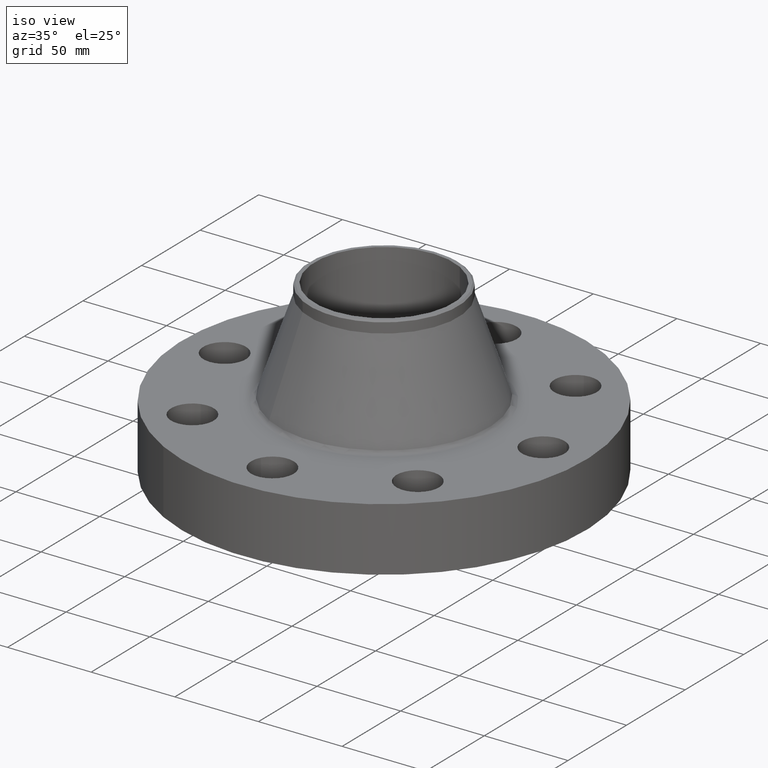
[diagram: clean part render]
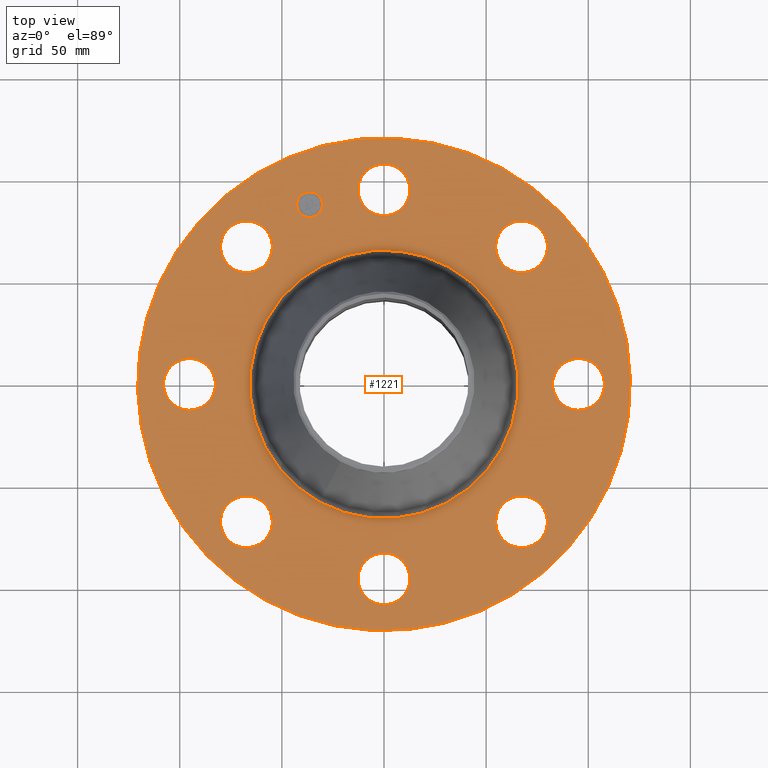
[diagram: tour spotlight — one face highlighted and labeled with its STEP entity id]
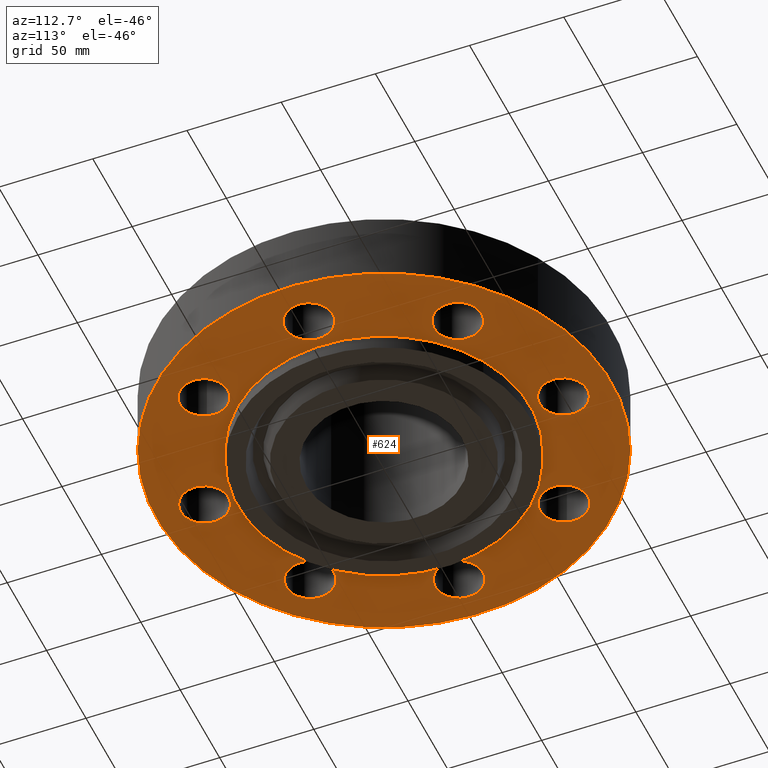
[diagram: tour spotlight — one face highlighted and labeled with its STEP entity id]
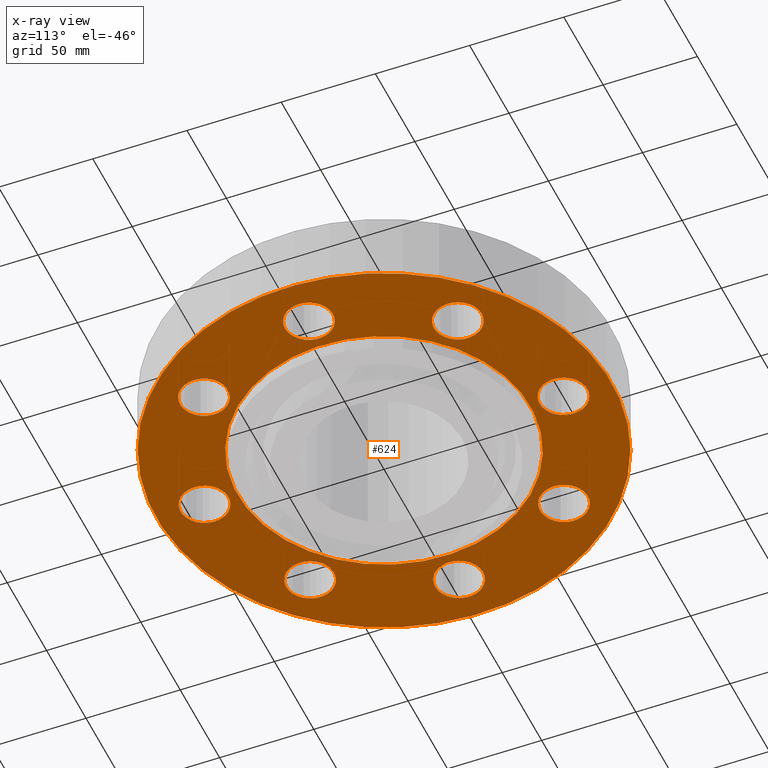
[diagram: x-ray of the same camera — body ghosted, this tour face saturated]
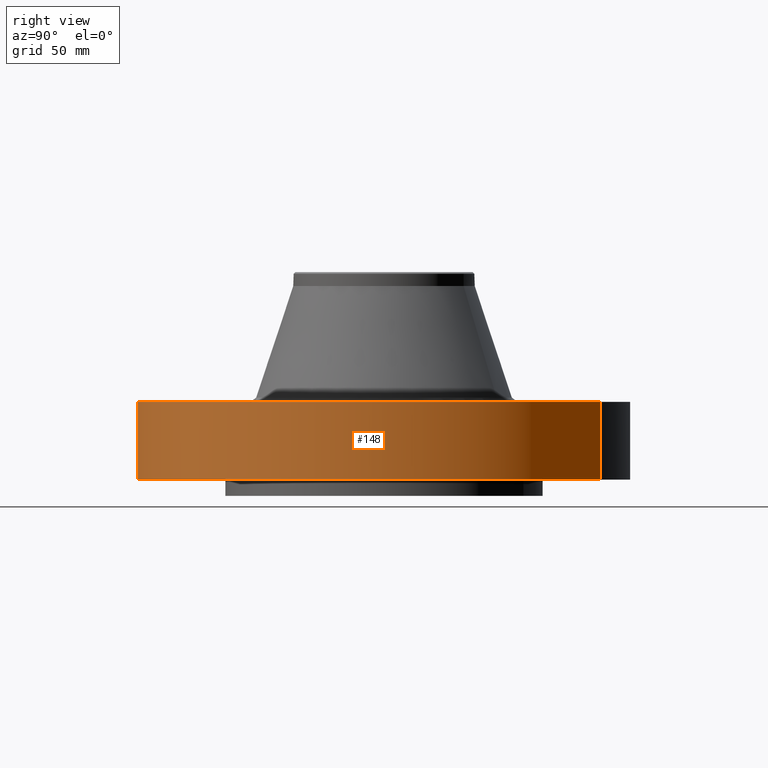
[diagram: tour spotlight — one face highlighted and labeled with its STEP entity id]
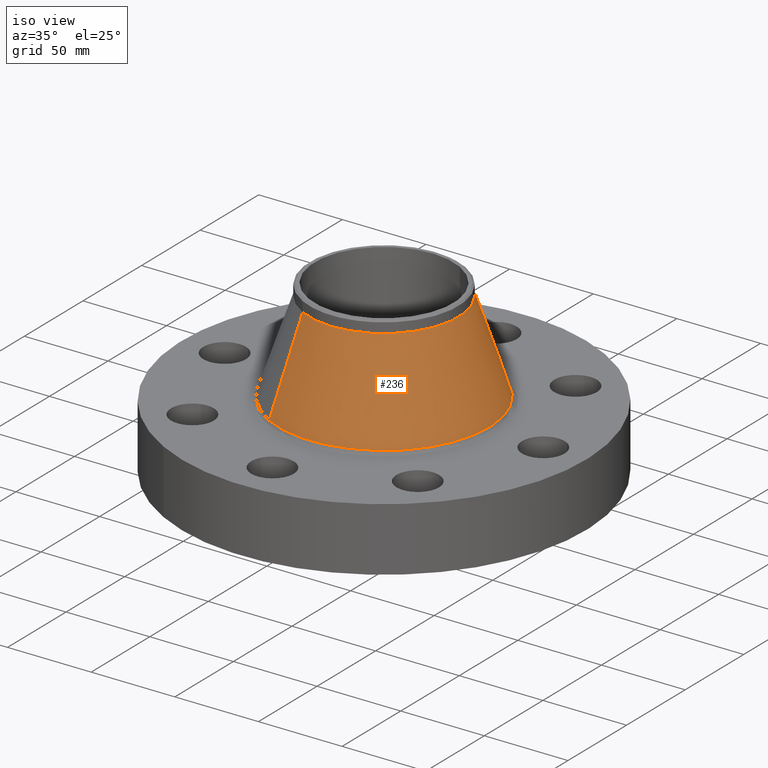
[diagram: tour spotlight — one face highlighted and labeled with its STEP entity id]
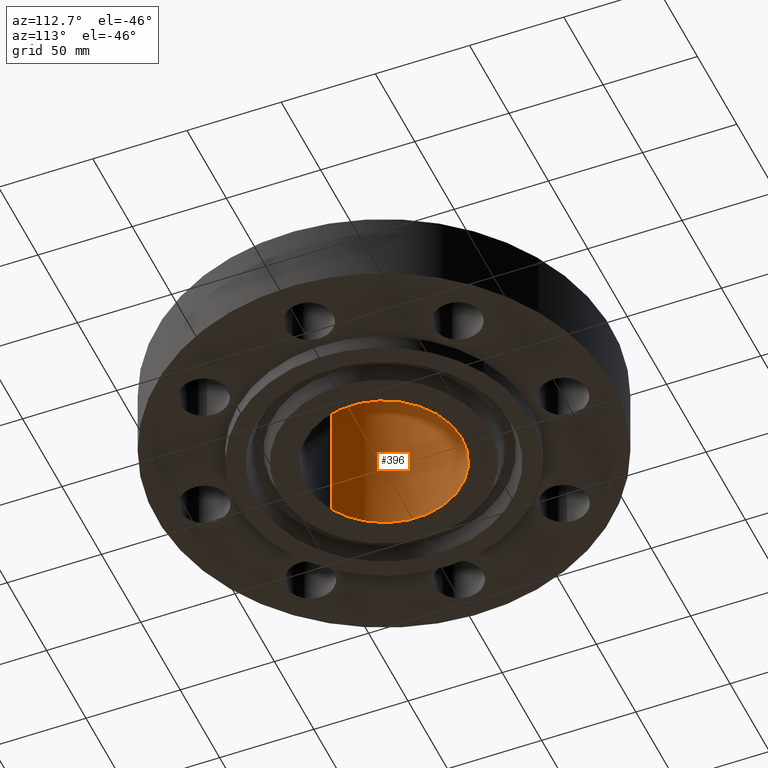
[diagram: tour spotlight — one face highlighted and labeled with its STEP entity id]
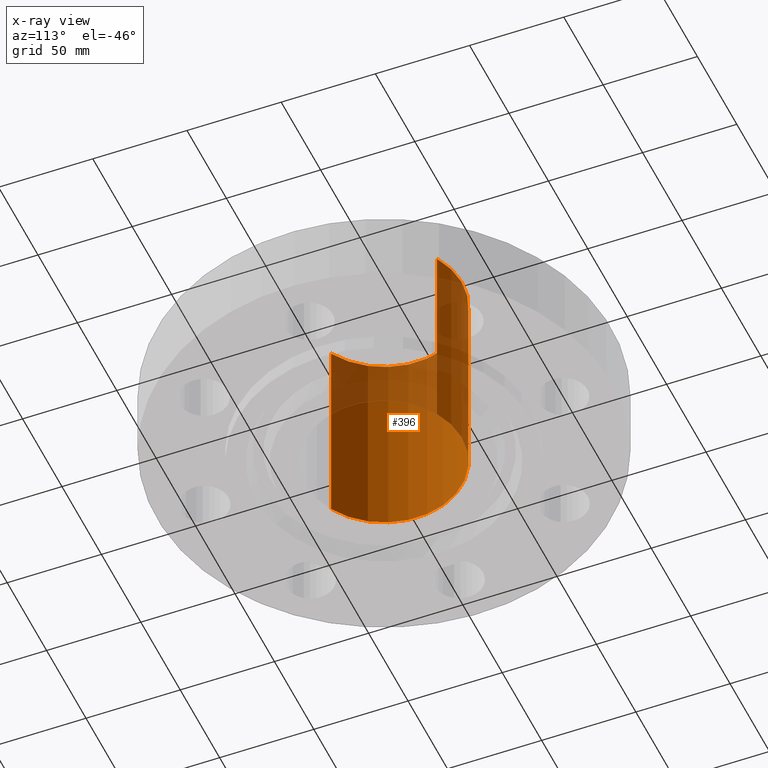
[diagram: x-ray of the same camera — body ghosted, this tour face saturated]
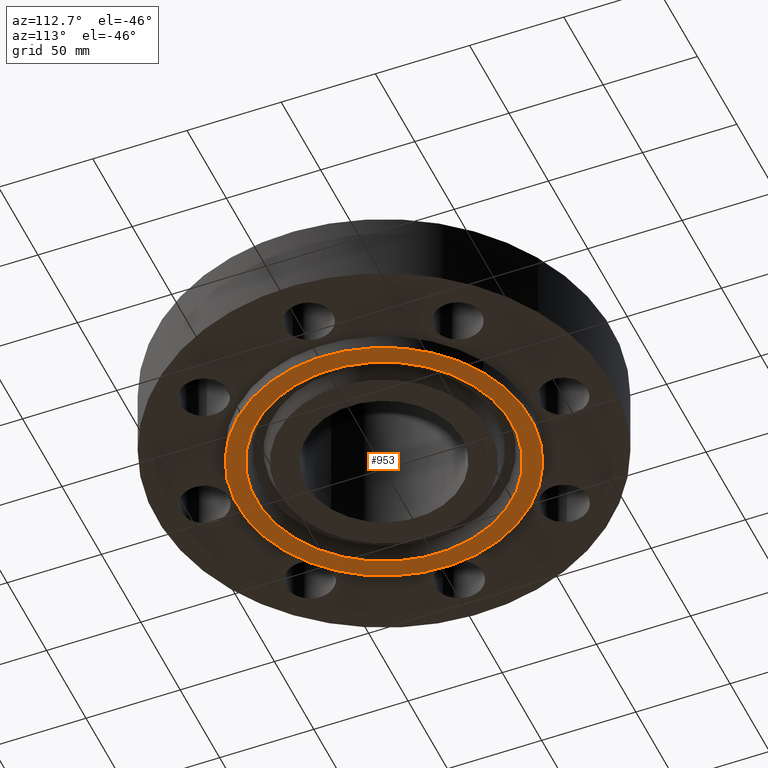
[diagram: tour spotlight — one face highlighted and labeled with its STEP entity id]
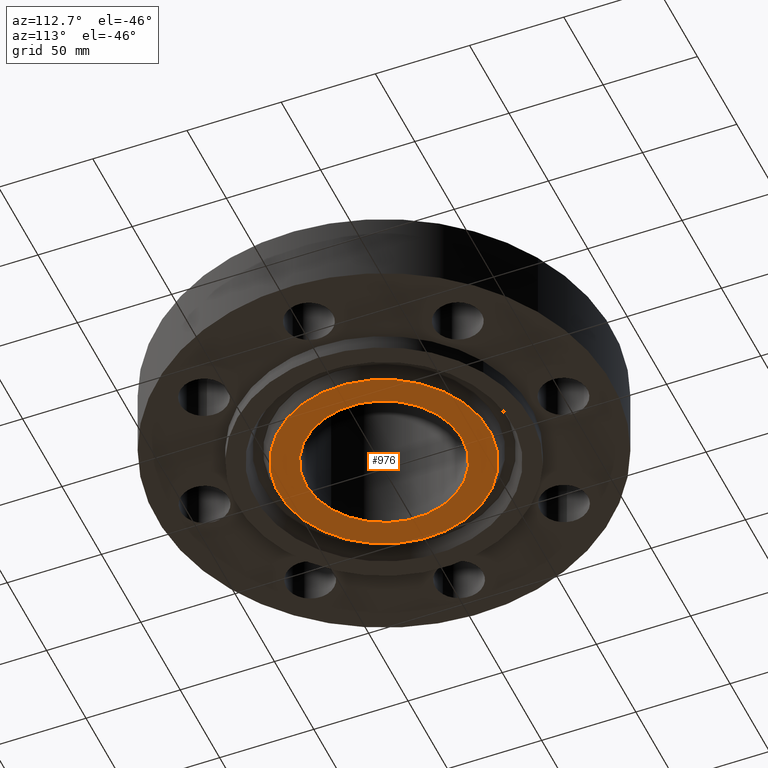
[diagram: tour spotlight — one face highlighted and labeled with its STEP entity id]
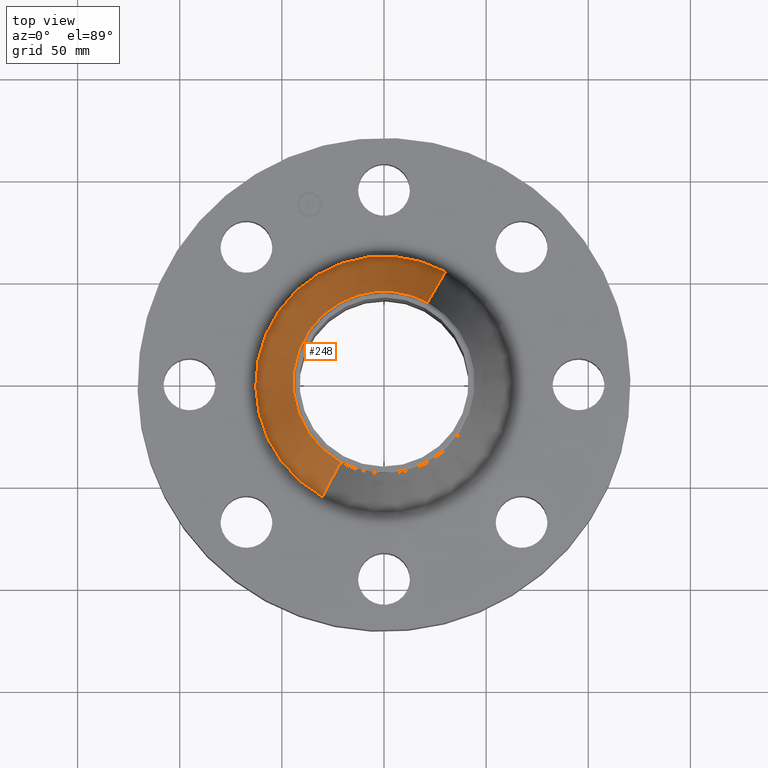
[diagram: tour spotlight — one face highlighted and labeled with its STEP entity id]
A machine part: a face-by-face anatomy tour. The part has 429 B-rep faces; the first image is the clean iso view, then the 8 largest visible faces are spotlighted one at a time (largest first), each with its STEP entity span.

Face 1 — top view, entity #1221. In plain terms, the highlighted planar face has unit normal (0, 0, -1).
Definition (entity closure, byte-faithful):
#65=AXIS2_PLACEMENT_3D('Circle Axis2P3D',#63,#64,$) ;
#82=AXIS2_PLACEMENT_3D('Circle Axis2P3D',#80,#81,$) ;
#115=AXIS2_PLACEMENT_3D('Circle Axis2P3D',#113,#114,$) ;
#139=AXIS2_PLACEMENT_3D('Circle Axis2P3D',#137,#138,$) ;
#156=AXIS2_PLACEMENT_3D('Circle Axis2P3D',#154,#155,$) ;
#191=AXIS2_PLACEMENT_3D('Circle Axis2P3D',#189,#190,$) ;
#646=AXIS2_PLACEMENT_3D('Circle Axis2P3D',#644,#645,$) ;
#658=AXIS2_PLACEMENT_3D('Circle Axis2P3D',#656,#657,$) ;
#689=AXIS2_PLACEMENT_3D('Circle Axis2P3D',#687,#688,$) ;
#701=AXIS2_PLACEMENT_3D('Circle Axis2P3D',#699,#700,$) ;
#732=AXIS2_PLACEMENT_3D('Circle Axis2P3D',#730,#731,$) ;
#744=AXIS2_PLACEMENT_3D('Circle Axis2P3D',#742,#743,$) ;
#775=AXIS2_PLACEMENT_3D('Circle Axis2P3D',#773,#774,$) ;
#787=AXIS2_PLACEMENT_3D('Circle Axis2P3D',#785,#786,$) ;
#818=AXIS2_PLACEMENT_3D('Circle Axis2P3D',#816,#817,$) ;
#830=AXIS2_PLACEMENT_3D('Circle Axis2P3D',#828,#829,$) ;
#861=AXIS2_PLACEMENT_3D('Circle Axis2P3D',#859,#860,$) ;
#873=AXIS2_PLACEMENT_3D('Circle Axis2P3D',#871,#872,$) ;
#904=AXIS2_PLACEMENT_3D('Circle Axis2P3D',#902,#903,$) ;
#916=AXIS2_PLACEMENT_3D('Circle Axis2P3D',#914,#915,$) ;
#1161=AXIS2_PLACEMENT_3D('Plane Axis2P3D',#1158,#1159,#1160) ;
#1205=AXIS2_PLACEMENT_3D('Circle Axis2P3D',#1203,#1204,$) ;
#1214=AXIS2_PLACEMENT_3D('Circle Axis2P3D',#1212,#1213,$) ;
#46=CARTESIAN_POINT('Vertex',(-0.438791280947,3.98971276932,1.50000000001)) ;
#60=CARTESIAN_POINT('Vertex',(0.438791280947,3.51028723071,1.50000000001)) ;
#63=CARTESIAN_POINT('Axis2P3D Location',(0.,3.75000000002,1.50000000001)) ;
#80=CARTESIAN_POINT('Axis2P3D Location',(0.,3.75000000002,1.50000000001)) ;
#110=CARTESIAN_POINT('Vertex',(-2.27727130838,-4.168517169,1.50000000001)) ;
#113=CARTESIAN_POINT('Axis2P3D Location',(0.,0.,1.50000000001)) ;
#117=CARTESIAN_POINT('Vertex',(2.27727130838,4.168517169,1.50000000001)) ;
#137=CARTESIAN_POINT('Axis2P3D Location',(0.,0.,1.50000000001)) ;
#154=CARTESIAN_POINT('Axis2P3D Location',(0.,0.,1.50000000001)) ;
#158=CARTESIAN_POINT('Vertex',(1.23992502813,2.26966753984,1.50000000001)) ;
#160=CARTESIAN_POINT('Vertex',(-1.23992502813,-2.26966753984,1.50000000001)) ;
#189=CARTESIAN_POINT('Axis2P3D Location',(0.,0.,1.50000000001)) ;
#634=CARTESIAN_POINT('Vertex',(-2.51088066389,-3.13142524445,1.50000000001)) ;
#641=CARTESIAN_POINT('Vertex',(-2.79242019503,-2.17187561447,1.50000000001)) ;
#644=CARTESIAN_POINT('Axis2P3D Location',(-2.65165042946,-2.65165042946,1.50000000001)) ;
#656=CARTESIAN_POINT('Axis2P3D Location',(-2.65165042946,-2.65165042946,1.50000000001)) ;
#677=CARTESIAN_POINT('Vertex',(3.98971276932,0.438791280947,1.50000000001)) ;
#684=CARTESIAN_POINT('Vertex',(3.51028723071,-0.438791280947,1.50000000001)) ;
#687=CARTESIAN_POINT('Axis2P3D Location',(3.75000000002,2.29621274841E-016,1.50000000001)) ;
#699=CARTESIAN_POINT('Axis2P3D Location',(3.75000000002,2.29621274841E-016,1.50000000001)) ;
#720=CARTESIAN_POINT('Vertex',(-3.98971276932,-0.438791280947,1.50000000001)) ;
#727=CARTESIAN_POINT('Vertex',(-3.51028723071,0.438791280947,1.50000000001)) ;
#730=CARTESIAN_POINT('Axis2P3D Location',(-3.75000000002,-6.88863824523E-016,1.50000000001)) ;
#742=CARTESIAN_POINT('Axis2P3D Location',(-3.75000000002,-6.88863824523E-016,1.50000000001)) ;
#763=CARTESIAN_POINT('Vertex',(3.13142524445,-2.51088066389,1.50000000001)) ;
#770=CARTESIAN_POINT('Vertex',(2.17187561447,-2.79242019503,1.50000000001)) ;
#773=CARTESIAN_POINT('Axis2P3D Location',(2.65165042946,-2.65165042946,1.50000000001)) ;
#785=CARTESIAN_POINT('Axis2P3D Location',(2.65165042946,-2.65165042946,1.50000000001)) ;
#806=CARTESIAN_POINT('Vertex',(-3.13142524445,2.51088066389,1.50000000001)) ;
#813=CARTESIAN_POINT('Vertex',(-2.17187561447,2.79242019503,1.50000000001)) ;
#816=CARTESIAN_POINT('Axis2P3D Location',(-2.65165042946,2.65165042946,1.50000000001)) ;
#828=CARTESIAN_POINT('Axis2P3D Location',(-2.65165042946,2.65165042946,1.50000000001)) ;
#849=CARTESIAN_POINT('Vertex',(0.438791280947,-3.98971276932,1.50000000001)) ;
#856=CARTESIAN_POINT('Vertex',(-0.438791280947,-3.51028723071,1.50000000001)) ;
#859=CARTESIAN_POINT('Axis2P3D Location',(4.59242549682E-016,-3.75000000002,1.50000000001)) ;
#871=CARTESIAN_POINT('Axis2P3D Location',(4.59242549682E-016,-3.75000000002,1.50000000001)) ;
#892=CARTESIAN_POINT('Vertex',(2.51088066389,3.13142524445,1.50000000001)) ;
#899=CARTESIAN_POINT('Vertex',(2.79242019503,2.17187561447,1.50000000001)) ;
#902=CARTESIAN_POINT('Axis2P3D Location',(2.65165042946,2.65165042946,1.50000000001)) ;
#914=CARTESIAN_POINT('Axis2P3D Location',(2.65165042946,2.65165042946,1.50000000001)) ;
#1158=CARTESIAN_POINT('Axis2P3D Location',(0.,4.75000000002,1.50000000001)) ;
#1203=CARTESIAN_POINT('Axis2P3D Location',(-1.43506287137,3.46454824693,1.50000000001)) ;
#1207=CARTESIAN_POINT('Vertex',(-1.66372305567,3.36983409742,1.50000000001)) ;
#1209=CARTESIAN_POINT('Vertex',(-1.20640268708,3.55926239644,1.50000000001)) ;
#1212=CARTESIAN_POINT('Axis2P3D Location',(-1.43506287137,3.46454824693,1.50000000001)) ;
#64=DIRECTION('Axis2P3D Direction',(0.,-0.,-0.0393700787402)) ;
#81=DIRECTION('Axis2P3D Direction',(0.,-0.,-0.0393700787402)) ;
#114=DIRECTION('Axis2P3D Direction',(0.,0.,-0.0393700787402)) ;
#138=DIRECTION('Axis2P3D Direction',(0.,0.,-0.0393700787402)) ;
#155=DIRECTION('Axis2P3D Direction',(0.,0.,-0.0393700787402)) ;
#190=DIRECTION('Axis2P3D Direction',(0.,0.,-0.0393700787402)) ;
#645=DIRECTION('Axis2P3D Direction',(0.,0.,-0.0393700787402)) ;
#657=DIRECTION('Axis2P3D Direction',(0.,0.,-0.0393700787402)) ;
#688=DIRECTION('Axis2P3D Direction',(0.,-0.,-0.0393700787402)) ;
#700=DIRECTION('Axis2P3D Direction',(0.,-0.,-0.0393700787402)) ;
#731=DIRECTION('Axis2P3D Direction',(0.,0.,-0.0393700787402)) ;
#743=DIRECTION('Axis2P3D Direction',(0.,0.,-0.0393700787402)) ;
#774=DIRECTION('Axis2P3D Direction',(-0.,0.,-0.0393700787402)) ;
#786=DIRECTION('Axis2P3D Direction',(-0.,0.,-0.0393700787402)) ;
#817=DIRECTION('Axis2P3D Direction',(0.,0.,-0.0393700787402)) ;
#829=DIRECTION('Axis2P3D Direction',(0.,0.,-0.0393700787402)) ;
#860=DIRECTION('Axis2P3D Direction',(-0.,0.,-0.0393700787402)) ;
#872=DIRECTION('Axis2P3D Direction',(-0.,0.,-0.0393700787402)) ;
#903=DIRECTION('Axis2P3D Direction',(0.,-0.,-0.0393700787402)) ;
#915=DIRECTION('Axis2P3D Direction',(0.,-0.,-0.0393700787402)) ;
#1159=DIRECTION('Axis2P3D Direction',(0.,0.,-0.0393700787402)) ;
#1160=DIRECTION('Axis2P3D XDirection',(0.0393700787402,0.,0.)) ;
#1204=DIRECTION('Axis2P3D Direction',(0.,0.,-0.0393700787402)) ;
#1213=DIRECTION('Axis2P3D Direction',(0.,0.,-0.0393700787402)) ;
#1164=ORIENTED_EDGE('',*,*,#141,.F.) ;
#1165=ORIENTED_EDGE('',*,*,#119,.F.) ;
#1168=ORIENTED_EDGE('',*,*,#67,.T.) ;
#1169=ORIENTED_EDGE('',*,*,#84,.T.) ;
#1172=ORIENTED_EDGE('',*,*,#193,.T.) ;
#1173=ORIENTED_EDGE('',*,*,#162,.T.) ;
#1176=ORIENTED_EDGE('',*,*,#918,.T.) ;
#1177=ORIENTED_EDGE('',*,*,#906,.T.) ;
#1180=ORIENTED_EDGE('',*,*,#703,.T.) ;
#1181=ORIENTED_EDGE('',*,*,#691,.T.) ;
#1184=ORIENTED_EDGE('',*,*,#789,.T.) ;
#1185=ORIENTED_EDGE('',*,*,#777,.T.) ;
#1188=ORIENTED_EDGE('',*,*,#875,.T.) ;
#1189=ORIENTED_EDGE('',*,*,#863,.T.) ;
#1192=ORIENTED_EDGE('',*,*,#660,.T.) ;
#1193=ORIENTED_EDGE('',*,*,#648,.T.) ;
#1196=ORIENTED_EDGE('',*,*,#746,.T.) ;
#1197=ORIENTED_EDGE('',*,*,#734,.T.) ;
#1200=ORIENTED_EDGE('',*,*,#832,.T.) ;
#1201=ORIENTED_EDGE('',*,*,#820,.T.) ;
#1218=ORIENTED_EDGE('',*,*,#1211,.T.) ;
#1219=ORIENTED_EDGE('',*,*,#1216,.T.) ;
#1170=FACE_BOUND('',#1167,.T.) ;
#1174=FACE_BOUND('',#1171,.T.) ;
#1178=FACE_BOUND('',#1175,.T.) ;
#1182=FACE_BOUND('',#1179,.T.) ;
#1186=FACE_BOUND('',#1183,.T.) ;
#1190=FACE_BOUND('',#1187,.T.) ;
#1194=FACE_BOUND('',#1191,.T.) ;
#1198=FACE_BOUND('',#1195,.T.) ;
#1202=FACE_BOUND('',#1199,.T.) ;
#1220=FACE_BOUND('',#1217,.T.) ;
#1221=ADVANCED_FACE('PartBody',(#1166,#1170,#1174,#1178,#1182,#1186,#1190,#1194,#1198,#1202,#1220),#1162,.F.) ;
#66=CIRCLE('generated circle',#65,0.500000000002) ;
#83=CIRCLE('generated circle',#82,0.500000000002) ;
#116=CIRCLE('generated circle',#115,4.75000000002) ;
#140=CIRCLE('generated circle',#139,4.75000000002) ;
#157=CIRCLE('generated circle',#156,2.58627237869) ;
#192=CIRCLE('generated circle',#191,2.58627237869) ;
#647=CIRCLE('generated circle',#646,0.500000000002) ;
#659=CIRCLE('generated circle',#658,0.500000000002) ;
#690=CIRCLE('generated circle',#689,0.500000000002) ;
#702=CIRCLE('generated circle',#701,0.500000000002) ;
#733=CIRCLE('generated circle',#732,0.500000000002) ;
#745=CIRCLE('generated circle',#744,0.500000000002) ;
#776=CIRCLE('generated circle',#775,0.500000000002) ;
#788=CIRCLE('generated circle',#787,0.500000000002) ;
#819=CIRCLE('generated circle',#818,0.500000000002) ;
#831=CIRCLE('generated circle',#830,0.500000000002) ;
#862=CIRCLE('generated circle',#861,0.500000000002) ;
#874=CIRCLE('generated circle',#873,0.500000000002) ;
#905=CIRCLE('generated circle',#904,0.500000000002) ;
#917=CIRCLE('generated circle',#916,0.500000000002) ;
#1206=CIRCLE('generated circle',#1205,0.247500000001) ;
#1215=CIRCLE('generated circle',#1214,0.247500000001) ;
#67=EDGE_CURVE('',#47,#61,#66,.T.) ;
#84=EDGE_CURVE('',#61,#47,#83,.T.) ;
#119=EDGE_CURVE('',#111,#118,#116,.T.) ;
#141=EDGE_CURVE('',#118,#111,#140,.T.) ;
#162=EDGE_CURVE('',#159,#161,#157,.T.) ;
#193=EDGE_CURVE('',#161,#159,#192,.T.) ;
#648=EDGE_CURVE('',#635,#642,#647,.T.) ;
#660=EDGE_CURVE('',#642,#635,#659,.T.) ;
#691=EDGE_CURVE('',#678,#685,#690,.T.) ;
#703=EDGE_CURVE('',#685,#678,#702,.T.) ;
#734=EDGE_CURVE('',#721,#728,#733,.T.) ;
#746=EDGE_CURVE('',#728,#721,#745,.T.) ;
#777=EDGE_CURVE('',#764,#771,#776,.T.) ;
#789=EDGE_CURVE('',#771,#764,#788,.T.) ;
#820=EDGE_CURVE('',#807,#814,#819,.T.) ;
#832=EDGE_CURVE('',#814,#807,#831,.T.) ;
#863=EDGE_CURVE('',#850,#857,#862,.T.) ;
#875=EDGE_CURVE('',#857,#850,#874,.T.) ;
#906=EDGE_CURVE('',#893,#900,#905,.T.) ;
#918=EDGE_CURVE('',#900,#893,#917,.T.) ;
#1211=EDGE_CURVE('',#1208,#1210,#1206,.T.) ;
#1216=EDGE_CURVE('',#1210,#1208,#1215,.T.) ;
#1163=EDGE_LOOP('',(#1164,#1165)) ;
#1167=EDGE_LOOP('',(#1168,#1169)) ;
#1171=EDGE_LOOP('',(#1172,#1173)) ;
#1175=EDGE_LOOP('',(#1176,#1177)) ;
#1179=EDGE_LOOP('',(#1180,#1181)) ;
#1183=EDGE_LOOP('',(#1184,#1185)) ;
#1187=EDGE_LOOP('',(#1188,#1189)) ;
#1191=EDGE_LOOP('',(#1192,#1193)) ;
#1195=EDGE_LOOP('',(#1196,#1197)) ;
#1199=EDGE_LOOP('',(#1200,#1201)) ;
#1217=EDGE_LOOP('',(#1218,#1219)) ;
#1166=FACE_OUTER_BOUND('',#1163,.T.) ;
#1162=PLANE('',#1161) ;
#47=VERTEX_POINT('',#46) ;
#61=VERTEX_POINT('',#60) ;
#111=VERTEX_POINT('',#110) ;
#118=VERTEX_POINT('',#117) ;
#159=VERTEX_POINT('',#158) ;
#161=VERTEX_POINT('',#160) ;
#635=VERTEX_POINT('',#634) ;
#642=VERTEX_POINT('',#641) ;
#678=VERTEX_POINT('',#677) ;
#685=VERTEX_POINT('',#684) ;
#721=VERTEX_POINT('',#720) ;
#728=VERTEX_POINT('',#727) ;
#764=VERTEX_POINT('',#763) ;
#771=VERTEX_POINT('',#770) ;
#807=VERTEX_POINT('',#806) ;
#814=VERTEX_POINT('',#813) ;
#850=VERTEX_POINT('',#849) ;
#857=VERTEX_POINT('',#856) ;
#893=VERTEX_POINT('',#892) ;
#900=VERTEX_POINT('',#899) ;
#1208=VERTEX_POINT('',#1207) ;
#1210=VERTEX_POINT('',#1209) ;

Face 2 — auxiliary view, entity #624. An x-ray twin of the same camera follows (body ghosted, this face saturated) — the face is partly hidden behind the body. In plain terms, the highlighted planar face has unit normal (0, 0, -1).
Definition (entity closure, byte-faithful):
#51=AXIS2_PLACEMENT_3D('Circle Axis2P3D',#49,#50,$) ;
#77=AXIS2_PLACEMENT_3D('Circle Axis2P3D',#75,#76,$) ;
#99=AXIS2_PLACEMENT_3D('Circle Axis2P3D',#97,#98,$) ;
#134=AXIS2_PLACEMENT_3D('Circle Axis2P3D',#132,#133,$) ;
#447=AXIS2_PLACEMENT_3D('Circle Axis2P3D',#445,#446,$) ;
#471=AXIS2_PLACEMENT_3D('Circle Axis2P3D',#469,#470,$) ;
#484=AXIS2_PLACEMENT_3D('Plane Axis2P3D',#481,#482,#483) ;
#500=AXIS2_PLACEMENT_3D('Circle Axis2P3D',#498,#499,$) ;
#509=AXIS2_PLACEMENT_3D('Circle Axis2P3D',#507,#508,$) ;
#518=AXIS2_PLACEMENT_3D('Circle Axis2P3D',#516,#517,$) ;
#527=AXIS2_PLACEMENT_3D('Circle Axis2P3D',#525,#526,$) ;
#536=AXIS2_PLACEMENT_3D('Circle Axis2P3D',#534,#535,$) ;
#545=AXIS2_PLACEMENT_3D('Circle Axis2P3D',#543,#544,$) ;
#554=AXIS2_PLACEMENT_3D('Circle Axis2P3D',#552,#553,$) ;
#563=AXIS2_PLACEMENT_3D('Circle Axis2P3D',#561,#562,$) ;
#572=AXIS2_PLACEMENT_3D('Circle Axis2P3D',#570,#571,$) ;
#581=AXIS2_PLACEMENT_3D('Circle Axis2P3D',#579,#580,$) ;
#590=AXIS2_PLACEMENT_3D('Circle Axis2P3D',#588,#589,$) ;
#599=AXIS2_PLACEMENT_3D('Circle Axis2P3D',#597,#598,$) ;
#608=AXIS2_PLACEMENT_3D('Circle Axis2P3D',#606,#607,$) ;
#617=AXIS2_PLACEMENT_3D('Circle Axis2P3D',#615,#616,$) ;
#44=CARTESIAN_POINT('Vertex',(-0.438791280947,3.98971276932,0.)) ;
#49=CARTESIAN_POINT('Axis2P3D Location',(0.,3.75000000002,0.)) ;
#53=CARTESIAN_POINT('Vertex',(0.438791280947,3.51028723071,0.)) ;
#75=CARTESIAN_POINT('Axis2P3D Location',(0.,3.75000000002,0.)) ;
#97=CARTESIAN_POINT('Axis2P3D Location',(0.,0.,5.59482469102E-016)) ;
#101=CARTESIAN_POINT('Vertex',(-2.27727130838,-4.168517169,5.59482469102E-016)) ;
#103=CARTESIAN_POINT('Vertex',(2.27727130838,4.168517169,5.59482469102E-016)) ;
#132=CARTESIAN_POINT('Axis2P3D Location',(0.,0.,5.59482469102E-016)) ;
#442=CARTESIAN_POINT('Vertex',(-1.46824071198,-2.6875965958,2.79741234551E-016)) ;
#445=CARTESIAN_POINT('Axis2P3D Location',(0.,0.,2.79741234551E-016)) ;
#449=CARTESIAN_POINT('Vertex',(1.46824071198,2.6875965958,2.79741234551E-016)) ;
#469=CARTESIAN_POINT('Axis2P3D Location',(0.,0.,2.79741234551E-016)) ;
#481=CARTESIAN_POINT('Axis2P3D Location',(0.,3.06250000001,0.)) ;
#498=CARTESIAN_POINT('Axis2P3D Location',(2.65165042946,2.65165042946,0.)) ;
#502=CARTESIAN_POINT('Vertex',(2.51088066389,3.13142524445,0.)) ;
#504=CARTESIAN_POINT('Vertex',(2.79242019503,2.17187561447,0.)) ;
#507=CARTESIAN_POINT('Axis2P3D Location',(2.65165042946,2.65165042946,0.)) ;
#516=CARTESIAN_POINT('Axis2P3D Location',(3.75000000002,5.59482469102E-016,0.)) ;
#520=CARTESIAN_POINT('Vertex',(3.98971276932,0.438791280947,0.)) ;
#522=CARTESIAN_POINT('Vertex',(3.51028723071,-0.438791280947,0.)) ;
#525=CARTESIAN_POINT('Axis2P3D Location',(3.75000000002,0.,0.)) ;
#534=CARTESIAN_POINT('Axis2P3D Location',(2.65165042946,-2.65165042946,0.)) ;
#538=CARTESIAN_POINT('Vertex',(3.13142524445,-2.51088066389,0.)) ;
#540=CARTESIAN_POINT('Vertex',(2.17187561447,-2.79242019503,0.)) ;
#543=CARTESIAN_POINT('Axis2P3D Location',(2.65165042946,-2.65165042946,0.)) ;
#552=CARTESIAN_POINT('Axis2P3D Location',(4.89547160465E-016,-3.75000000002,0.)) ;
#556=CARTESIAN_POINT('Vertex',(0.438791280947,-3.98971276932,0.)) ;
#558=CARTESIAN_POINT('Vertex',(-0.438791280947,-3.51028723071,0.)) ;
#561=CARTESIAN_POINT('Axis2P3D Location',(6.469016049E-016,-3.75000000002,0.)) ;
#570=CARTESIAN_POINT('Axis2P3D Location',(-2.65165042946,-2.65165042946,0.)) ;
#574=CARTESIAN_POINT('Vertex',(-2.51088066389,-3.13142524445,0.)) ;
#576=CARTESIAN_POINT('Vertex',(-2.79242019503,-2.17187561447,0.)) ;
#579=CARTESIAN_POINT('Axis2P3D Location',(-2.65165042946,-2.65165042946,0.)) ;
#588=CARTESIAN_POINT('Axis2P3D Location',(-3.75000000002,-5.59482469102E-016,0.)) ;
#592=CARTESIAN_POINT('Vertex',(-3.98971276932,-0.438791280947,0.)) ;
#594=CARTESIAN_POINT('Vertex',(-3.51028723071,0.438791280947,0.)) ;
#597=CARTESIAN_POINT('Axis2P3D Location',(-3.75000000002,-5.59482469102E-016,0.)) ;
#606=CARTESIAN_POINT('Axis2P3D Location',(-2.65165042946,2.65165042946,0.)) ;
#610=CARTESIAN_POINT('Vertex',(-3.13142524445,2.51088066389,0.)) ;
#612=CARTESIAN_POINT('Vertex',(-2.17187561447,2.79242019503,0.)) ;
#615=CARTESIAN_POINT('Axis2P3D Location',(-2.65165042946,2.65165042946,0.)) ;
#50=DIRECTION('Axis2P3D Direction',(0.,-0.,-0.0393700787402)) ;
#76=DIRECTION('Axis2P3D Direction',(0.,-0.,-0.0393700787402)) ;
#98=DIRECTION('Axis2P3D Direction',(0.,0.,-0.0393700787402)) ;
#133=DIRECTION('Axis2P3D Direction',(0.,0.,-0.0393700787402)) ;
#446=DIRECTION('Axis2P3D Direction',(0.,0.,-0.0393700787402)) ;
#470=DIRECTION('Axis2P3D Direction',(0.,0.,-0.0393700787402)) ;
#482=DIRECTION('Axis2P3D Direction',(0.,0.,-0.0393700787402)) ;
#483=DIRECTION('Axis2P3D XDirection',(0.0393700787402,0.,0.)) ;
#499=DIRECTION('Axis2P3D Direction',(0.,0.,-0.0393700787402)) ;
#508=DIRECTION('Axis2P3D Direction',(0.,0.,-0.0393700787402)) ;
#517=DIRECTION('Axis2P3D Direction',(0.,0.,-0.0393700787402)) ;
#526=DIRECTION('Axis2P3D Direction',(0.,0.,-0.0393700787402)) ;
#535=DIRECTION('Axis2P3D Direction',(0.,0.,-0.0393700787402)) ;
#544=DIRECTION('Axis2P3D Direction',(0.,0.,-0.0393700787402)) ;
#553=DIRECTION('Axis2P3D Direction',(0.,0.,-0.0393700787402)) ;
#562=DIRECTION('Axis2P3D Direction',(0.,0.,-0.0393700787402)) ;
#571=DIRECTION('Axis2P3D Direction',(0.,0.,-0.0393700787402)) ;
#580=DIRECTION('Axis2P3D Direction',(0.,0.,-0.0393700787402)) ;
#589=DIRECTION('Axis2P3D Direction',(0.,0.,-0.0393700787402)) ;
#598=DIRECTION('Axis2P3D Direction',(0.,0.,-0.0393700787402)) ;
#607=DIRECTION('Axis2P3D Direction',(0.,0.,-0.0393700787402)) ;
#616=DIRECTION('Axis2P3D Direction',(0.,0.,-0.0393700787402)) ;
#487=ORIENTED_EDGE('',*,*,#105,.T.) ;
#488=ORIENTED_EDGE('',*,*,#136,.T.) ;
#491=ORIENTED_EDGE('',*,*,#79,.F.) ;
#492=ORIENTED_EDGE('',*,*,#55,.F.) ;
#495=ORIENTED_EDGE('',*,*,#473,.F.) ;
#496=ORIENTED_EDGE('',*,*,#451,.F.) ;
#513=ORIENTED_EDGE('',*,*,#506,.F.) ;
#514=ORIENTED_EDGE('',*,*,#511,.F.) ;
#531=ORIENTED_EDGE('',*,*,#524,.F.) ;
#532=ORIENTED_EDGE('',*,*,#529,.F.) ;
#549=ORIENTED_EDGE('',*,*,#542,.F.) ;
#550=ORIENTED_EDGE('',*,*,#547,.F.) ;
#567=ORIENTED_EDGE('',*,*,#560,.F.) ;
#568=ORIENTED_EDGE('',*,*,#565,.F.) ;
#585=ORIENTED_EDGE('',*,*,#578,.F.) ;
#586=ORIENTED_EDGE('',*,*,#583,.F.) ;
#603=ORIENTED_EDGE('',*,*,#596,.F.) ;
#604=ORIENTED_EDGE('',*,*,#601,.F.) ;
#621=ORIENTED_EDGE('',*,*,#614,.F.) ;
#622=ORIENTED_EDGE('',*,*,#619,.F.) ;
#493=FACE_BOUND('',#490,.T.) ;
#497=FACE_BOUND('',#494,.T.) ;
#515=FACE_BOUND('',#512,.T.) ;
#533=FACE_BOUND('',#530,.T.) ;
#551=FACE_BOUND('',#548,.T.) ;
#569=FACE_BOUND('',#566,.T.) ;
#587=FACE_BOUND('',#584,.T.) ;
#605=FACE_BOUND('',#602,.T.) ;
#623=FACE_BOUND('',#620,.T.) ;
#624=ADVANCED_FACE('PartBody',(#489,#493,#497,#515,#533,#551,#569,#587,#605,#623),#485,.T.) ;
#52=CIRCLE('generated circle',#51,0.500000000002) ;
#78=CIRCLE('generated circle',#77,0.500000000002) ;
#100=CIRCLE('generated circle',#99,4.75000000002) ;
#135=CIRCLE('generated circle',#134,4.75000000002) ;
#448=CIRCLE('generated circle',#447,3.06250000001) ;
#472=CIRCLE('generated circle',#471,3.06250000001) ;
#501=CIRCLE('generated circle',#500,0.500000000002) ;
#510=CIRCLE('generated circle',#509,0.500000000002) ;
#519=CIRCLE('generated circle',#518,0.500000000002) ;
#528=CIRCLE('generated circle',#527,0.500000000002) ;
#537=CIRCLE('generated circle',#536,0.500000000002) ;
#546=CIRCLE('generated circle',#545,0.500000000002) ;
#555=CIRCLE('generated circle',#554,0.500000000002) ;
#564=CIRCLE('generated circle',#563,0.500000000002) ;
#573=CIRCLE('generated circle',#572,0.500000000002) ;
#582=CIRCLE('generated circle',#581,0.500000000002) ;
#591=CIRCLE('generated circle',#590,0.500000000002) ;
#600=CIRCLE('generated circle',#599,0.500000000002) ;
#609=CIRCLE('generated circle',#608,0.500000000002) ;
#618=CIRCLE('generated circle',#617,0.500000000002) ;
#55=EDGE_CURVE('',#45,#54,#52,.T.) ;
#79=EDGE_CURVE('',#54,#45,#78,.T.) ;
#105=EDGE_CURVE('',#102,#104,#100,.T.) ;
#136=EDGE_CURVE('',#104,#102,#135,.T.) ;
#451=EDGE_CURVE('',#443,#450,#448,.T.) ;
#473=EDGE_CURVE('',#450,#443,#472,.T.) ;
#506=EDGE_CURVE('',#503,#505,#501,.T.) ;
#511=EDGE_CURVE('',#505,#503,#510,.T.) ;
#524=EDGE_CURVE('',#521,#523,#519,.T.) ;
#529=EDGE_CURVE('',#523,#521,#528,.T.) ;
#542=EDGE_CURVE('',#539,#541,#537,.T.) ;
#547=EDGE_CURVE('',#541,#539,#546,.T.) ;
#560=EDGE_CURVE('',#557,#559,#555,.T.) ;
#565=EDGE_CURVE('',#559,#557,#564,.T.) ;
#578=EDGE_CURVE('',#575,#577,#573,.T.) ;
#583=EDGE_CURVE('',#577,#575,#582,.T.) ;
#596=EDGE_CURVE('',#593,#595,#591,.T.) ;
#601=EDGE_CURVE('',#595,#593,#600,.T.) ;
#614=EDGE_CURVE('',#611,#613,#609,.T.) ;
#619=EDGE_CURVE('',#613,#611,#618,.T.) ;
#486=EDGE_LOOP('',(#487,#488)) ;
#490=EDGE_LOOP('',(#491,#492)) ;
#494=EDGE_LOOP('',(#495,#496)) ;
#512=EDGE_LOOP('',(#513,#514)) ;
#530=EDGE_LOOP('',(#531,#532)) ;
#548=EDGE_LOOP('',(#549,#550)) ;
#566=EDGE_LOOP('',(#567,#568)) ;
#584=EDGE_LOOP('',(#585,#586)) ;
#602=EDGE_LOOP('',(#603,#604)) ;
#620=EDGE_LOOP('',(#621,#622)) ;
#489=FACE_OUTER_BOUND('',#486,.T.) ;
#485=PLANE('',#484) ;
#45=VERTEX_POINT('',#44) ;
#54=VERTEX_POINT('',#53) ;
#102=VERTEX_POINT('',#101) ;
#104=VERTEX_POINT('',#103) ;
#443=VERTEX_POINT('',#442) ;
#450=VERTEX_POINT('',#449) ;
#503=VERTEX_POINT('',#502) ;
#505=VERTEX_POINT('',#504) ;
#521=VERTEX_POINT('',#520) ;
#523=VERTEX_POINT('',#522) ;
#539=VERTEX_POINT('',#538) ;
#541=VERTEX_POINT('',#540) ;
#557=VERTEX_POINT('',#556) ;
#559=VERTEX_POINT('',#558) ;
#575=VERTEX_POINT('',#574) ;
#577=VERTEX_POINT('',#576) ;
#593=VERTEX_POINT('',#592) ;
#595=VERTEX_POINT('',#594) ;
#611=VERTEX_POINT('',#610) ;
#613=VERTEX_POINT('',#612) ;

Face 3 — right view, entity #148. In plain terms, the highlighted cylindrical surface (partial cylindrical patch) has radius 120.65 mm, axis along (0, 0, -1).
Definition (entity closure, byte-faithful):
#95=AXIS2_PLACEMENT_3D('Cylinder Axis2P3D',#92,#93,#94) ;
#134=AXIS2_PLACEMENT_3D('Circle Axis2P3D',#132,#133,$) ;
#139=AXIS2_PLACEMENT_3D('Circle Axis2P3D',#137,#138,$) ;
#92=CARTESIAN_POINT('Axis2P3D Location',(0.,0.,1.84375000001)) ;
#101=CARTESIAN_POINT('Vertex',(-2.27727130838,-4.168517169,5.59482469102E-016)) ;
#103=CARTESIAN_POINT('Vertex',(2.27727130838,4.168517169,5.59482469102E-016)) ;
#106=CARTESIAN_POINT('Line Origine',(-2.27727130838,-4.168517169,0.750000000003)) ;
#110=CARTESIAN_POINT('Vertex',(-2.27727130838,-4.168517169,1.50000000001)) ;
#117=CARTESIAN_POINT('Vertex',(2.27727130838,4.168517169,1.50000000001)) ;
#120=CARTESIAN_POINT('Line Origine',(2.27727130838,4.168517169,0.750000000003)) ;
#132=CARTESIAN_POINT('Axis2P3D Location',(0.,0.,5.59482469102E-016)) ;
#137=CARTESIAN_POINT('Axis2P3D Location',(0.,0.,1.50000000001)) ;
#93=DIRECTION('Axis2P3D Direction',(0.,0.,-0.0393700787402)) ;
#94=DIRECTION('Axis2P3D XDirection',(0.0188750212049,0.0345504945626,0.)) ;
#107=DIRECTION('Vector Direction',(0.,0.,-0.0393700787402)) ;
#121=DIRECTION('Vector Direction',(0.,0.,-0.0393700787402)) ;
#133=DIRECTION('Axis2P3D Direction',(0.,0.,-0.0393700787402)) ;
#138=DIRECTION('Axis2P3D Direction',(0.,0.,-0.0393700787402)) ;
#108=VECTOR('Line Direction',#107,0.0393700787402) ;
#122=VECTOR('Line Direction',#121,0.0393700787402) ;
#143=ORIENTED_EDGE('',*,*,#136,.F.) ;
#144=ORIENTED_EDGE('',*,*,#124,.T.) ;
#145=ORIENTED_EDGE('',*,*,#141,.T.) ;
#146=ORIENTED_EDGE('',*,*,#112,.F.) ;
#148=ADVANCED_FACE('PartBody',(#147),#96,.T.) ;
#135=CIRCLE('generated circle',#134,4.75000000002) ;
#140=CIRCLE('generated circle',#139,4.75000000002) ;
#96=CYLINDRICAL_SURFACE('generated cylinder',#95,4.75000000002) ;
#112=EDGE_CURVE('',#102,#111,#109,.F.) ;
#124=EDGE_CURVE('',#104,#118,#123,.F.) ;
#136=EDGE_CURVE('',#104,#102,#135,.T.) ;
#141=EDGE_CURVE('',#118,#111,#140,.T.) ;
#142=EDGE_LOOP('',(#143,#144,#145,#146)) ;
#147=FACE_OUTER_BOUND('',#142,.T.) ;
#109=LINE('Line',#106,#108) ;
#123=LINE('Line',#120,#122) ;
#102=VERTEX_POINT('',#101) ;
#104=VERTEX_POINT('',#103) ;
#111=VERTEX_POINT('',#110) ;
#118=VERTEX_POINT('',#117) ;

Face 4 — iso view, entity #236. In plain terms, the highlighted conical surface has half-angle 18.573 deg.
Definition (entity closure, byte-faithful):
#172=AXIS2_PLACEMENT_3D('Circle Axis2P3D',#170,#171,$) ;
#209=AXIS2_PLACEMENT_3D('Cone Axis2P3D',#206,#207,#208) ;
#220=AXIS2_PLACEMENT_3D('Circle Axis2P3D',#218,#219,$) ;
#167=CARTESIAN_POINT('Vertex',(1.18539011021,2.16984204218,1.58177941987)) ;
#170=CARTESIAN_POINT('Axis2P3D Location',(0.,0.,1.58177941987)) ;
#174=CARTESIAN_POINT('Vertex',(-1.18539011021,-2.16984204218,1.58177941987)) ;
#206=CARTESIAN_POINT('Axis2P3D Location',(0.,0.,3.73211973689)) ;
#211=CARTESIAN_POINT('Line Origine',(1.01219240139,1.85280576275,2.65694957838)) ;
#215=CARTESIAN_POINT('Vertex',(0.838994692561,1.53576948331,3.73211973689)) ;
#218=CARTESIAN_POINT('Axis2P3D Location',(0.,0.,3.73211973689)) ;
#222=CARTESIAN_POINT('Vertex',(-0.838994692561,-1.53576948331,3.73211973689)) ;
#225=CARTESIAN_POINT('Line Origine',(-1.01219240139,-1.85280576275,2.65694957838)) ;
#171=DIRECTION('Axis2P3D Direction',(0.,0.,-0.0393700787402)) ;
#207=DIRECTION('Axis2P3D Direction',(0.,0.,-0.0393700787402)) ;
#208=DIRECTION('Axis2P3D XDirection',(-0.0188750212049,-0.0345504945626,0.)) ;
#212=DIRECTION('Vector Direction',(0.0060117855044,0.0110044995514,-0.0373197337166)) ;
#219=DIRECTION('Axis2P3D Direction',(0.,0.,-0.0393700787402)) ;
#226=DIRECTION('Vector Direction',(-0.0060117855044,-0.0110044995514,-0.0373197337166)) ;
#213=VECTOR('Line Direction',#212,0.0393700787402) ;
#227=VECTOR('Line Direction',#226,0.0393700787402) ;
#231=ORIENTED_EDGE('',*,*,#176,.F.) ;
#232=ORIENTED_EDGE('',*,*,#217,.T.) ;
#233=ORIENTED_EDGE('',*,*,#224,.T.) ;
#234=ORIENTED_EDGE('',*,*,#229,.F.) ;
#236=ADVANCED_FACE('PartBody',(#235),#210,.T.) ;
#173=CIRCLE('generated circle',#172,2.47252183032) ;
#221=CIRCLE('generated circle',#220,1.75000000001) ;
#210=CONICAL_SURFACE('Cone',#209,1.75000000001,0.324151758563) ;
#176=EDGE_CURVE('',#168,#175,#173,.T.) ;
#217=EDGE_CURVE('',#168,#216,#214,.F.) ;
#224=EDGE_CURVE('',#216,#223,#221,.T.) ;
#229=EDGE_CURVE('',#175,#223,#228,.F.) ;
#230=EDGE_LOOP('',(#231,#232,#233,#234)) ;
#235=FACE_OUTER_BOUND('',#230,.T.) ;
#214=LINE('Line',#211,#213) ;
#228=LINE('Line',#225,#227) ;
#168=VERTEX_POINT('',#167) ;
#175=VERTEX_POINT('',#174) ;
#216=VERTEX_POINT('',#215) ;
#223=VERTEX_POINT('',#222) ;

Face 5 — auxiliary view, entity #396. An x-ray twin of the same camera follows (body ghosted, this face saturated) — the face is partly hidden behind the body. In plain terms, the highlighted cylindrical surface (partial cylindrical patch) has radius 41.402 mm, axis along (0, 0, -1).
Definition (entity closure, byte-faithful):
#343=AXIS2_PLACEMENT_3D('Cylinder Axis2P3D',#340,#341,#342) ;
#382=AXIS2_PLACEMENT_3D('Circle Axis2P3D',#380,#381,$) ;
#387=AXIS2_PLACEMENT_3D('Circle Axis2P3D',#385,#386,$) ;
#340=CARTESIAN_POINT('Axis2P3D Location',(0.,0.,1.84375000001)) ;
#349=CARTESIAN_POINT('Vertex',(0.781463627928,1.43045957589,4.00000000002)) ;
#351=CARTESIAN_POINT('Vertex',(-0.781463627928,-1.43045957589,4.00000000002)) ;
#354=CARTESIAN_POINT('Line Origine',(0.781463627928,1.43045957589,1.84375000001)) ;
#358=CARTESIAN_POINT('Vertex',(0.781463627928,1.43045957589,-0.312500000001)) ;
#365=CARTESIAN_POINT('Vertex',(-0.781463627928,-1.43045957589,-0.312500000001)) ;
#368=CARTESIAN_POINT('Line Origine',(-0.781463627928,-1.43045957589,1.84375000001)) ;
#380=CARTESIAN_POINT('Axis2P3D Location',(0.,0.,4.00000000002)) ;
#385=CARTESIAN_POINT('Axis2P3D Location',(0.,0.,-0.312500000001)) ;
#341=DIRECTION('Axis2P3D Direction',(0.,0.,-0.0393700787402)) ;
#342=DIRECTION('Axis2P3D XDirection',(-0.0188750212049,-0.0345504945626,0.)) ;
#355=DIRECTION('Vector Direction',(0.,0.,-0.0393700787402)) ;
#369=DIRECTION('Vector Direction',(0.,0.,-0.0393700787402)) ;
#381=DIRECTION('Axis2P3D Direction',(0.,0.,-0.0393700787402)) ;
#386=DIRECTION('Axis2P3D Direction',(0.,0.,-0.0393700787402)) ;
#356=VECTOR('Line Direction',#355,0.0393700787402) ;
#370=VECTOR('Line Direction',#369,0.0393700787402) ;
#391=ORIENTED_EDGE('',*,*,#384,.F.) ;
#392=ORIENTED_EDGE('',*,*,#372,.T.) ;
#393=ORIENTED_EDGE('',*,*,#389,.T.) ;
#394=ORIENTED_EDGE('',*,*,#360,.F.) ;
#396=ADVANCED_FACE('PartBody',(#395),#344,.F.) ;
#383=CIRCLE('generated circle',#382,1.63000000001) ;
#388=CIRCLE('generated circle',#387,1.63000000001) ;
#344=CYLINDRICAL_SURFACE('generated cylinder',#343,1.63000000001) ;
#360=EDGE_CURVE('',#350,#359,#357,.T.) ;
#372=EDGE_CURVE('',#352,#366,#371,.T.) ;
#384=EDGE_CURVE('',#352,#350,#383,.T.) ;
#389=EDGE_CURVE('',#366,#359,#388,.T.) ;
#390=EDGE_LOOP('',(#391,#392,#393,#394)) ;
#395=FACE_OUTER_BOUND('',#390,.T.) ;
#357=LINE('Line',#354,#356) ;
#371=LINE('Line',#368,#370) ;
#350=VERTEX_POINT('',#349) ;
#352=VERTEX_POINT('',#351) ;
#359=VERTEX_POINT('',#358) ;
#366=VERTEX_POINT('',#365) ;

Face 6 — auxiliary view, entity #953. In plain terms, the highlighted planar face has unit normal (0, 0, -1).
Definition (entity closure, byte-faithful):
#431=AXIS2_PLACEMENT_3D('Circle Axis2P3D',#429,#430,$) ;
#466=AXIS2_PLACEMENT_3D('Circle Axis2P3D',#464,#465,$) ;
#929=AXIS2_PLACEMENT_3D('Plane Axis2P3D',#926,#927,#928) ;
#937=AXIS2_PLACEMENT_3D('Circle Axis2P3D',#935,#936,$) ;
#946=AXIS2_PLACEMENT_3D('Circle Axis2P3D',#944,#945,$) ;
#429=CARTESIAN_POINT('Axis2P3D Location',(0.,0.,-0.312500000001)) ;
#433=CARTESIAN_POINT('Vertex',(-1.46824071198,-2.6875965958,-0.312500000001)) ;
#435=CARTESIAN_POINT('Vertex',(1.46824071198,2.6875965958,-0.312500000001)) ;
#464=CARTESIAN_POINT('Axis2P3D Location',(0.,0.,-0.312500000001)) ;
#926=CARTESIAN_POINT('Axis2P3D Location',(0.,1.63000000001,-0.312500000001)) ;
#935=CARTESIAN_POINT('Axis2P3D Location',(-6.99353086378E-017,-2.79741234551E-016,-0.312500000001)) ;
#939=CARTESIAN_POINT('Vertex',(1.2809770966,-2.34481284712,-0.312500000001)) ;
#941=CARTESIAN_POINT('Vertex',(-1.2809770966,2.34481284712,-0.312500000001)) ;
#944=CARTESIAN_POINT('Axis2P3D Location',(2.79741234551E-016,5.59482469102E-016,-0.312500000001)) ;
#430=DIRECTION('Axis2P3D Direction',(0.,0.,-0.0393700787402)) ;
#465=DIRECTION('Axis2P3D Direction',(0.,0.,-0.0393700787402)) ;
#927=DIRECTION('Axis2P3D Direction',(0.,0.,-0.0393700787402)) ;
#928=DIRECTION('Axis2P3D XDirection',(0.0393700787402,0.,0.)) ;
#936=DIRECTION('Axis2P3D Direction',(0.,0.,-0.0393700787402)) ;
#945=DIRECTION('Axis2P3D Direction',(0.,0.,-0.0393700787402)) ;
#932=ORIENTED_EDGE('',*,*,#437,.T.) ;
#933=ORIENTED_EDGE('',*,*,#468,.T.) ;
#950=ORIENTED_EDGE('',*,*,#943,.F.) ;
#951=ORIENTED_EDGE('',*,*,#948,.F.) ;
#952=FACE_BOUND('',#949,.T.) ;
#953=ADVANCED_FACE('PartBody',(#934,#952),#930,.T.) ;
#432=CIRCLE('generated circle',#431,3.06250000001) ;
#467=CIRCLE('generated circle',#466,3.06250000001) ;
#938=CIRCLE('generated circle',#937,2.67190000001) ;
#947=CIRCLE('generated circle',#946,2.67190000001) ;
#437=EDGE_CURVE('',#434,#436,#432,.T.) ;
#468=EDGE_CURVE('',#436,#434,#467,.T.) ;
#943=EDGE_CURVE('',#940,#942,#938,.T.) ;
#948=EDGE_CURVE('',#942,#940,#947,.T.) ;
#931=EDGE_LOOP('',(#932,#933)) ;
#949=EDGE_LOOP('',(#950,#951)) ;
#934=FACE_OUTER_BOUND('',#931,.T.) ;
#930=PLANE('',#929) ;
#434=VERTEX_POINT('',#433) ;
#436=VERTEX_POINT('',#435) ;
#940=VERTEX_POINT('',#939) ;
#942=VERTEX_POINT('',#941) ;

Face 7 — auxiliary view, entity #976. In plain terms, the highlighted planar face has unit normal (0, 0, -1).
Definition (entity closure, byte-faithful):
#363=AXIS2_PLACEMENT_3D('Circle Axis2P3D',#361,#362,$) ;
#387=AXIS2_PLACEMENT_3D('Circle Axis2P3D',#385,#386,$) ;
#929=AXIS2_PLACEMENT_3D('Plane Axis2P3D',#926,#927,#928) ;
#956=AXIS2_PLACEMENT_3D('Circle Axis2P3D',#954,#955,$) ;
#965=AXIS2_PLACEMENT_3D('Circle Axis2P3D',#963,#964,$) ;
#358=CARTESIAN_POINT('Vertex',(0.781463627928,1.43045957589,-0.312500000001)) ;
#361=CARTESIAN_POINT('Axis2P3D Location',(0.,0.,-0.312500000001)) ;
#365=CARTESIAN_POINT('Vertex',(-0.781463627928,-1.43045957589,-0.312500000001)) ;
#385=CARTESIAN_POINT('Axis2P3D Location',(0.,0.,-0.312500000001)) ;
#926=CARTESIAN_POINT('Axis2P3D Location',(0.,1.63000000001,-0.312500000001)) ;
#954=CARTESIAN_POINT('Axis2P3D Location',(5.59482469102E-016,2.79741234551E-016,-0.312500000001)) ;
#958=CARTESIAN_POINT('Vertex',(-1.0562224041,1.93340214211,-0.312500000001)) ;
#960=CARTESIAN_POINT('Vertex',(1.0562224041,-1.93340214211,-0.312500000001)) ;
#963=CARTESIAN_POINT('Axis2P3D Location',(8.39223703654E-016,-2.79741234551E-016,-0.312500000001)) ;
#362=DIRECTION('Axis2P3D Direction',(0.,0.,-0.0393700787402)) ;
#386=DIRECTION('Axis2P3D Direction',(0.,0.,-0.0393700787402)) ;
#927=DIRECTION('Axis2P3D Direction',(0.,0.,-0.0393700787402)) ;
#928=DIRECTION('Axis2P3D XDirection',(0.0393700787402,0.,0.)) ;
#955=DIRECTION('Axis2P3D Direction',(0.,0.,-0.0393700787402)) ;
#964=DIRECTION('Axis2P3D Direction',(0.,0.,-0.0393700787402)) ;
#969=ORIENTED_EDGE('',*,*,#962,.T.) ;
#970=ORIENTED_EDGE('',*,*,#967,.T.) ;
#973=ORIENTED_EDGE('',*,*,#367,.F.) ;
#974=ORIENTED_EDGE('',*,*,#389,.F.) ;
#975=FACE_BOUND('',#972,.T.) ;
#976=ADVANCED_FACE('PartBody',(#971,#975),#930,.T.) ;
#364=CIRCLE('generated circle',#363,1.63000000001) ;
#388=CIRCLE('generated circle',#387,1.63000000001) ;
#957=CIRCLE('generated circle',#956,2.20310000001) ;
#966=CIRCLE('generated circle',#965,2.20310000001) ;
#367=EDGE_CURVE('',#359,#366,#364,.T.) ;
#389=EDGE_CURVE('',#366,#359,#388,.T.) ;
#962=EDGE_CURVE('',#959,#961,#957,.T.) ;
#967=EDGE_CURVE('',#961,#959,#966,.T.) ;
#968=EDGE_LOOP('',(#969,#970)) ;
#972=EDGE_LOOP('',(#973,#974)) ;
#971=FACE_OUTER_BOUND('',#968,.T.) ;
#930=PLANE('',#929) ;
#359=VERTEX_POINT('',#358) ;
#366=VERTEX_POINT('',#365) ;
#959=VERTEX_POINT('',#958) ;
#961=VERTEX_POINT('',#960) ;

Face 8 — top view, entity #248. In plain terms, the highlighted conical surface has half-angle 18.573 deg.
Definition (entity closure, byte-faithful):
#196=AXIS2_PLACEMENT_3D('Circle Axis2P3D',#194,#195,$) ;
#209=AXIS2_PLACEMENT_3D('Cone Axis2P3D',#206,#207,#208) ;
#239=AXIS2_PLACEMENT_3D('Circle Axis2P3D',#237,#238,$) ;
#167=CARTESIAN_POINT('Vertex',(1.18539011021,2.16984204218,1.58177941987)) ;
#174=CARTESIAN_POINT('Vertex',(-1.18539011021,-2.16984204218,1.58177941987)) ;
#194=CARTESIAN_POINT('Axis2P3D Location',(0.,0.,1.58177941987)) ;
#206=CARTESIAN_POINT('Axis2P3D Location',(0.,0.,3.73211973689)) ;
#211=CARTESIAN_POINT('Line Origine',(1.01219240139,1.85280576275,2.65694957838)) ;
#215=CARTESIAN_POINT('Vertex',(0.838994692561,1.53576948331,3.73211973689)) ;
#222=CARTESIAN_POINT('Vertex',(-0.838994692561,-1.53576948331,3.73211973689)) ;
#225=CARTESIAN_POINT('Line Origine',(-1.01219240139,-1.85280576275,2.65694957838)) ;
#237=CARTESIAN_POINT('Axis2P3D Location',(0.,0.,3.73211973689)) ;
#195=DIRECTION('Axis2P3D Direction',(0.,0.,-0.0393700787402)) ;
#207=DIRECTION('Axis2P3D Direction',(0.,0.,-0.0393700787402)) ;
#208=DIRECTION('Axis2P3D XDirection',(-0.0188750212049,-0.0345504945626,0.)) ;
#212=DIRECTION('Vector Direction',(0.0060117855044,0.0110044995514,-0.0373197337166)) ;
#226=DIRECTION('Vector Direction',(-0.0060117855044,-0.0110044995514,-0.0373197337166)) ;
#238=DIRECTION('Axis2P3D Direction',(0.,0.,-0.0393700787402)) ;
#213=VECTOR('Line Direction',#212,0.0393700787402) ;
#227=VECTOR('Line Direction',#226,0.0393700787402) ;
#243=ORIENTED_EDGE('',*,*,#198,.F.) ;
#244=ORIENTED_EDGE('',*,*,#229,.T.) ;
#245=ORIENTED_EDGE('',*,*,#241,.T.) ;
#246=ORIENTED_EDGE('',*,*,#217,.F.) ;
#248=ADVANCED_FACE('PartBody',(#247),#210,.T.) ;
#197=CIRCLE('generated circle',#196,2.47252183032) ;
#240=CIRCLE('generated circle',#239,1.75000000001) ;
#210=CONICAL_SURFACE('Cone',#209,1.75000000001,0.324151758563) ;
#198=EDGE_CURVE('',#175,#168,#197,.T.) ;
#217=EDGE_CURVE('',#168,#216,#214,.F.) ;
#229=EDGE_CURVE('',#175,#223,#228,.F.) ;
#241=EDGE_CURVE('',#223,#216,#240,.T.) ;
#242=EDGE_LOOP('',(#243,#244,#245,#246)) ;
#247=FACE_OUTER_BOUND('',#242,.T.) ;
#214=LINE('Line',#211,#213) ;
#228=LINE('Line',#225,#227) ;
#168=VERTEX_POINT('',#167) ;
#175=VERTEX_POINT('',#174) ;
#216=VERTEX_POINT('',#215) ;
#223=VERTEX_POINT('',#222) ;